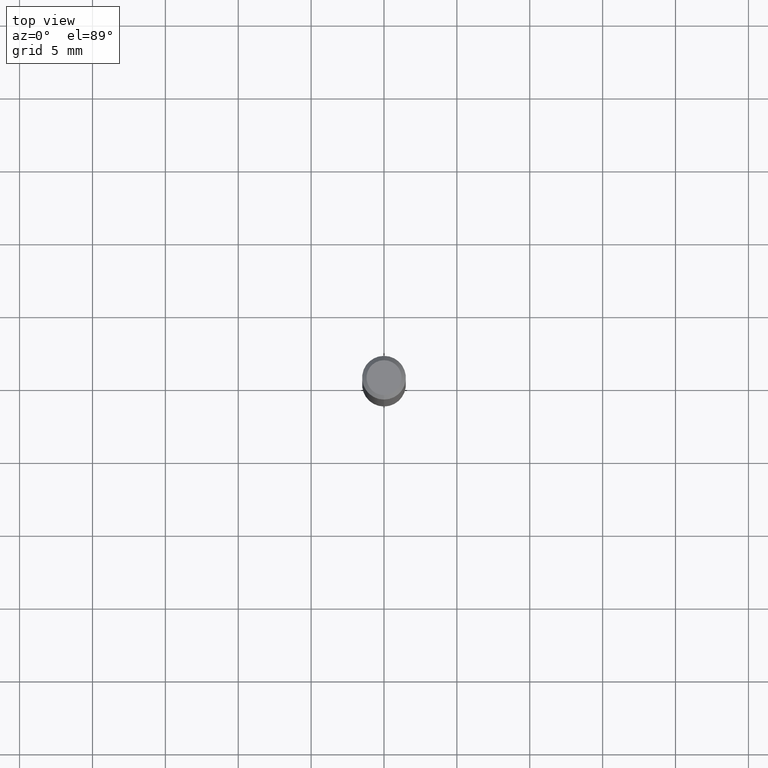
[diagram: clean part render]
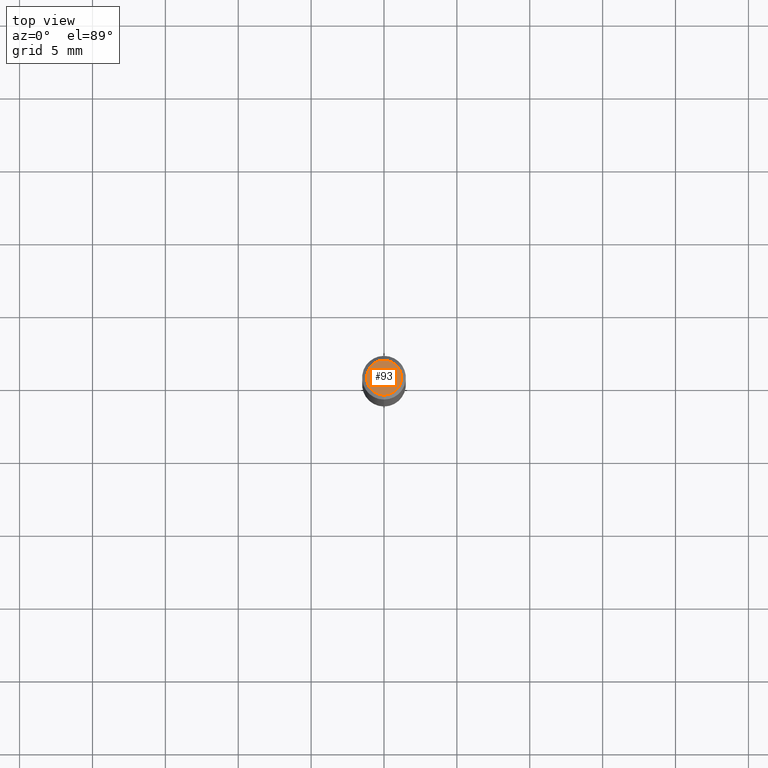
[diagram: same view with one face highlighted and labeled with its STEP entity id]
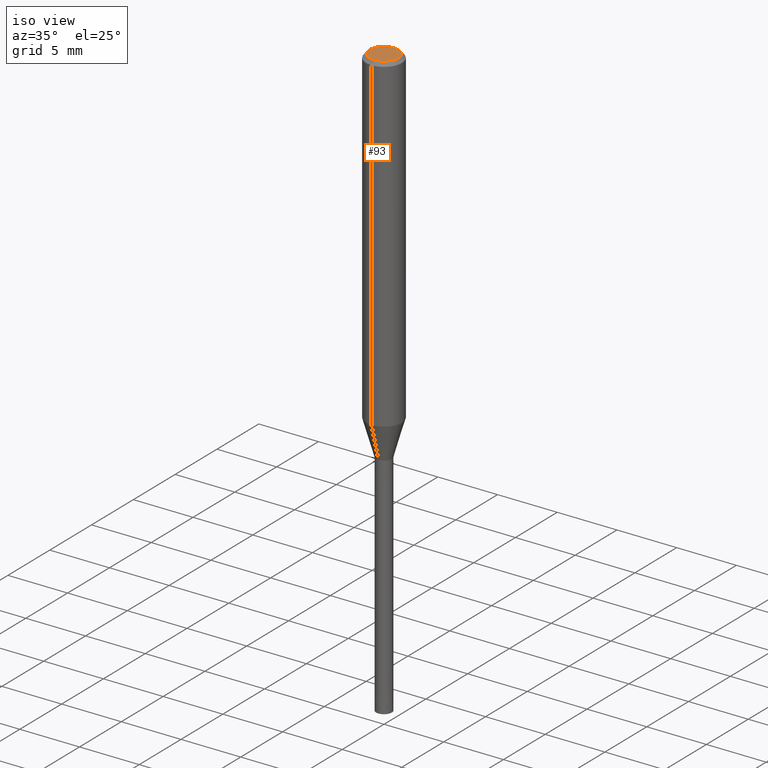
[diagram: same view with one face highlighted and labeled with its STEP entity id]
A machine part, top view. The second image highlights one B-rep face of the part: STEP entity #93.
A second angle (iso view) of the same face is appended — the face is thin or edge-on in the first view.
In plain terms, the highlighted planar face has unit normal (-0, 0, 1).
Its self-contained STEP definition (entity closure, byte-faithful):
#93=ADVANCED_FACE('',(#228),#229,.T.);
#123=VERTEX_POINT('',#263);
#145=VERTEX_POINT('',#287);
#157=EDGE_CURVE('',#123,#145,#300,.T.);
#199=EDGE_CURVE('',#145,#123,#348,.T.);
#228=FACE_OUTER_BOUND('',#370,.T.);
#229=PLANE('',#371);
#263=CARTESIAN_POINT('',(0.0,1.2,0.0));
#287=CARTESIAN_POINT('',(1.46952762458685E-016,-1.2,0.0));
#300=CIRCLE('',#461,1.2);
#348=CIRCLE('',#522,1.2);
#370=EDGE_LOOP('',(#536,#537));
#371=AXIS2_PLACEMENT_3D('',#538,#539,#540);
#461=AXIS2_PLACEMENT_3D('',#620,#621,#622);
#522=AXIS2_PLACEMENT_3D('',#690,#691,#692);
#536=ORIENTED_EDGE('',*,*,#157,.F.);
#537=ORIENTED_EDGE('',*,*,#199,.F.);
#538=CARTESIAN_POINT('',(0.0,0.6,0.0));
#539=DIRECTION('',(-0.0,0.0,1.0));
#540=DIRECTION('',(0.0,-1.0,0.0));
#620=CARTESIAN_POINT('',(0.0,0.0,0.0));
#621=DIRECTION('',(0.0,0.0,-1.0));
#622=DIRECTION('',(0.0,1.0,0.0));
#690=CARTESIAN_POINT('',(0.0,0.0,0.0));
#691=DIRECTION('',(0.0,0.0,-1.0));
#692=DIRECTION('',(0.0,1.0,0.0));